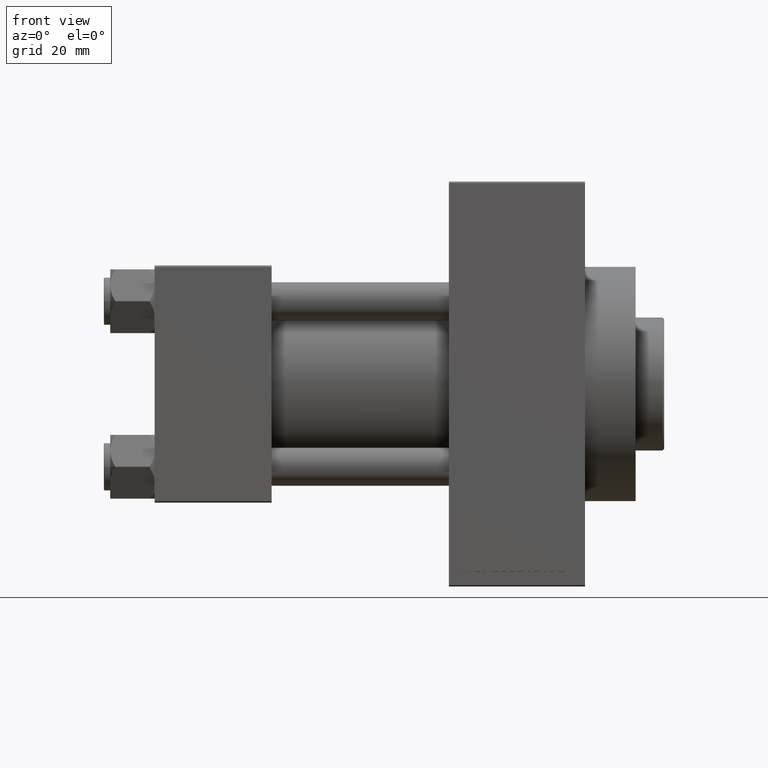
[diagram: clean part render]
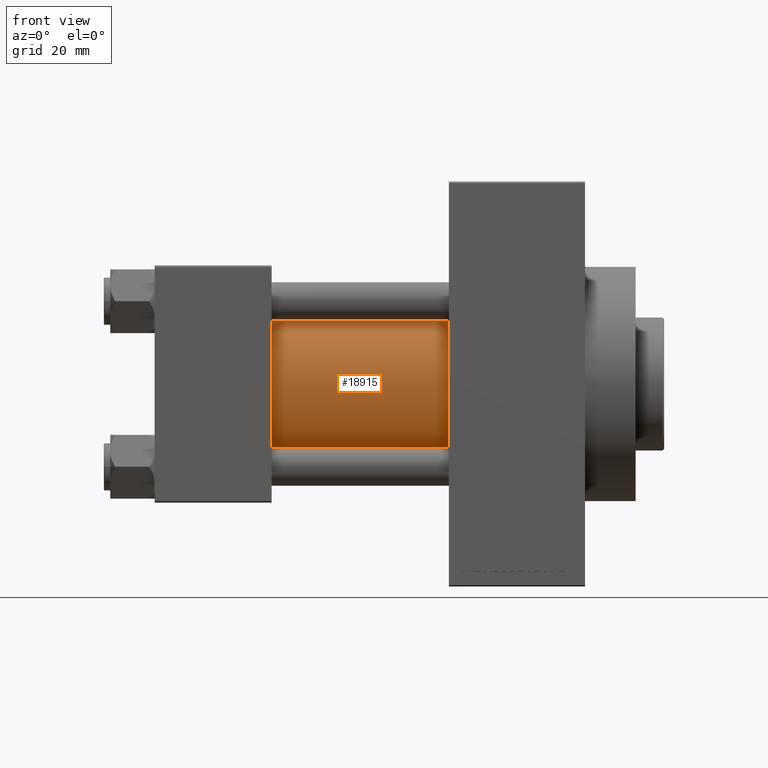
[diagram: same view with one face highlighted and labeled with its STEP entity id]
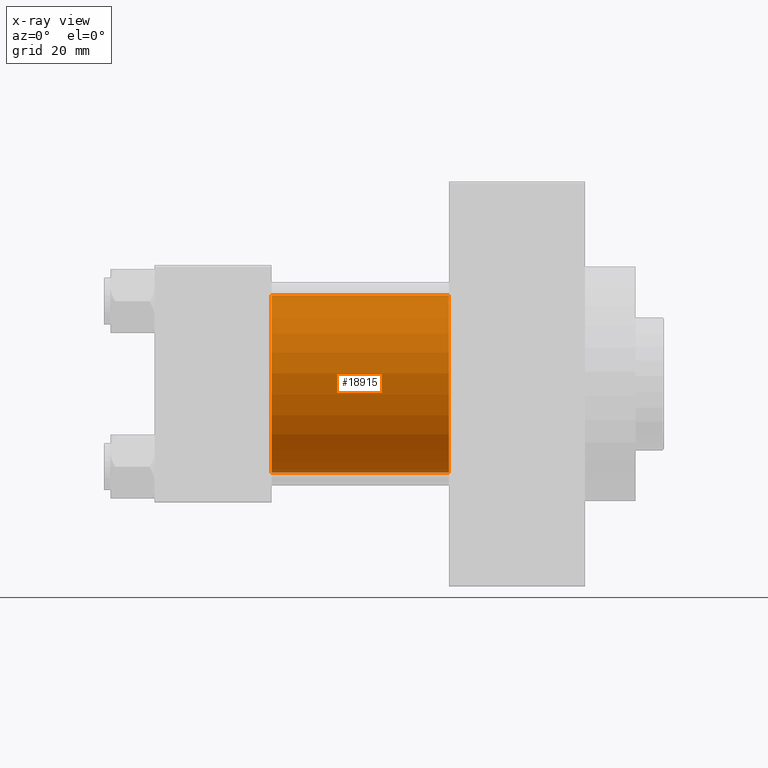
[diagram: x-ray of the same camera — body ghosted, the highlighted face saturated]
A machine part, front view. The second image highlights one B-rep face of the part: STEP entity #18915.
The next image is the same camera in x-ray: the body ghosted, the highlighted face saturated — about 3% of this face is hidden behind the body in this view.
In plain terms, the highlighted cylindrical surface (partial cylindrical patch) has radius 28 mm, axis along (-1, -0, -0).
Its self-contained STEP definition (entity closure, byte-faithful):
#913 = AXIS2_PLACEMENT_3D ( 'NONE', #18512, #8001, #37378 ) ;
#954 = VERTEX_POINT ( 'NONE', #27945 ) ;
#2042 = DIRECTION ( 'NONE',  ( 0.000000000000000000, 0.000000000000000000, 1.000000000000000000 ) ) ;
#2469 = CARTESIAN_POINT ( 'NONE',  ( 37.00000000000000000, 8.269258236473784371E-16, -28.00000000000000000 ) ) ;
#4936 = EDGE_LOOP ( 'NONE', ( #5274, #47068, #14180, #45232 ) ) ;
#5043 = CIRCLE ( 'NONE', #11115, 28.00000000000000000 ) ;
#5274 = ORIENTED_EDGE ( 'NONE', *, *, #23541, .F. ) ;
#6560 = VECTOR ( 'NONE', #39614, 1000.000000000000000 ) ;
#7233 = CARTESIAN_POINT ( 'NONE',  ( 93.00000000000000000, -2.602085213965210642E-15, 28.00000000000000000 ) ) ;
#7459 = CARTESIAN_POINT ( 'NONE',  ( 37.00000000000000000, -2.602085213965210642E-15, 28.00000000000000000 ) ) ;
#8001 = DIRECTION ( 'NONE',  ( 1.000000000000000000, 0.000000000000000000, 0.000000000000000000 ) ) ;
#10469 = CARTESIAN_POINT ( 'NONE',  ( 93.00000000000000000, 8.269258236473784371E-16, -28.00000000000000000 ) ) ;
#11115 = AXIS2_PLACEMENT_3D ( 'NONE', #35744, #24285, #31456 ) ;
#14180 = ORIENTED_EDGE ( 'NONE', *, *, #30502, .T. ) ;
#18512 = CARTESIAN_POINT ( 'NONE',  ( 93.00000000000000000, -2.602085213965210642E-15, 0.000000000000000000 ) ) ;
#18915 = ADVANCED_FACE ( 'NONE', ( #38333 ), #41910, .T. ) ;
#20174 = CARTESIAN_POINT ( 'NONE',  ( 93.00000000000000000, -2.602085213965210642E-15, 0.000000000000000000 ) ) ;
#23541 = EDGE_CURVE ( 'NONE', #954, #33594, #46316, .T. ) ;
#23929 = EDGE_CURVE ( 'NONE', #34507, #33594, #5043, .T. ) ;
#24285 = DIRECTION ( 'NONE',  ( 1.000000000000000000, -0.000000000000000000, 0.000000000000000000 ) ) ;
#27230 = CARTESIAN_POINT ( 'NONE',  ( 93.00000000000000000, -2.602085213965210642E-15, 28.00000000000000000 ) ) ;
#27532 = VERTEX_POINT ( 'NONE', #27230 ) ;
#27945 = CARTESIAN_POINT ( 'NONE',  ( 93.00000000000000000, 8.269258236473784371E-16, -28.00000000000000000 ) ) ;
#29679 = DIRECTION ( 'NONE',  ( -1.000000000000000000, -0.000000000000000000, -0.000000000000000000 ) ) ;
#30502 = EDGE_CURVE ( 'NONE', #27532, #34507, #39949, .T. ) ;
#31456 = DIRECTION ( 'NONE',  ( 0.000000000000000000, 0.000000000000000000, 1.000000000000000000 ) ) ;
#31930 = EDGE_CURVE ( 'NONE', #27532, #954, #45156, .T. ) ;
#33594 = VERTEX_POINT ( 'NONE', #2469 ) ;
#33654 = VECTOR ( 'NONE', #29679, 1000.000000000000000 ) ;
#34507 = VERTEX_POINT ( 'NONE', #7459 ) ;
#34756 = DIRECTION ( 'NONE',  ( -1.000000000000000000, -0.000000000000000000, -0.000000000000000000 ) ) ;
#35744 = CARTESIAN_POINT ( 'NONE',  ( 37.00000000000000000, -2.602085213965210642E-15, 0.000000000000000000 ) ) ;
#37378 = DIRECTION ( 'NONE',  ( 0.000000000000000000, 0.000000000000000000, -1.000000000000000000 ) ) ;
#38333 = FACE_OUTER_BOUND ( 'NONE', #4936, .T. ) ;
#39614 = DIRECTION ( 'NONE',  ( -1.000000000000000000, -0.000000000000000000, -0.000000000000000000 ) ) ;
#39949 = LINE ( 'NONE', #7233, #33654 ) ;
#41910 = CYLINDRICAL_SURFACE ( 'NONE', #44581, 28.00000000000000000 ) ;
#44581 = AXIS2_PLACEMENT_3D ( 'NONE', #20174, #34756, #2042 ) ;
#45156 = CIRCLE ( 'NONE', #913, 28.00000000000000000 ) ;
#45232 = ORIENTED_EDGE ( 'NONE', *, *, #23929, .T. ) ;
#46316 = LINE ( 'NONE', #10469, #6560 ) ;
#47068 = ORIENTED_EDGE ( 'NONE', *, *, #31930, .F. ) ;